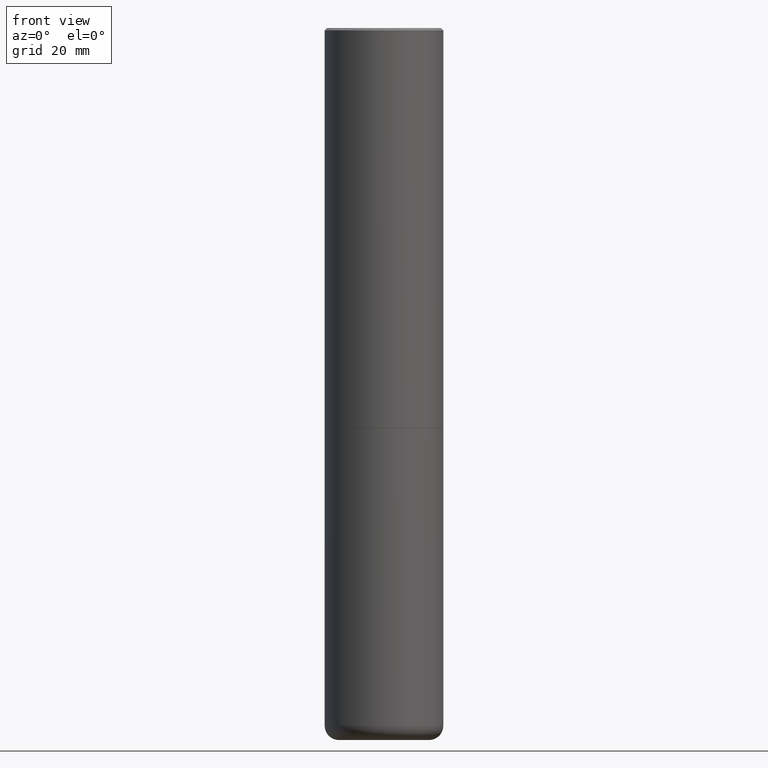
[diagram: clean part render]
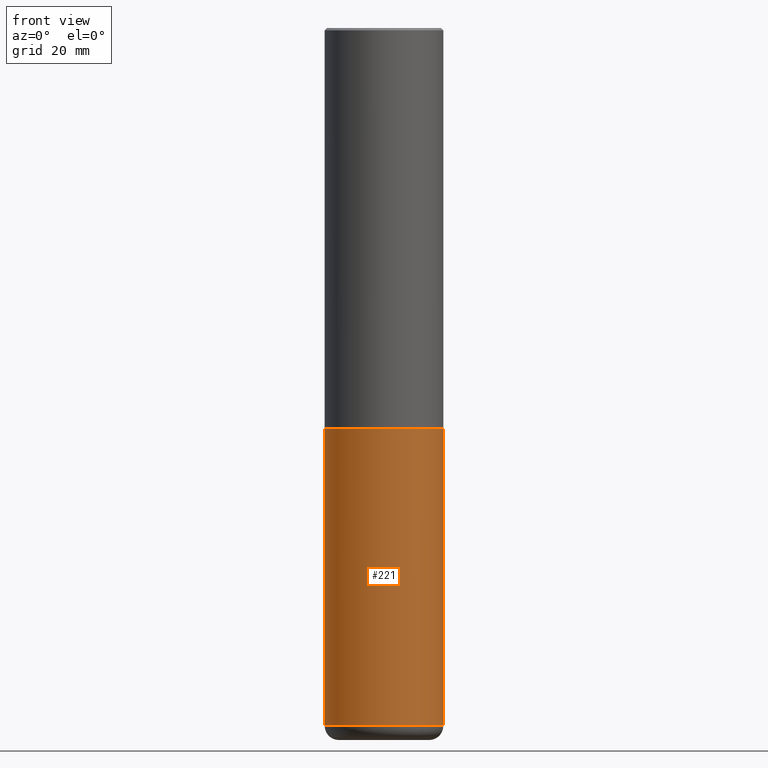
[diagram: same view with one face highlighted and labeled with its STEP entity id]
A machine part, front view. The second image highlights one B-rep face of the part: STEP entity #221.
In plain terms, the highlighted cylindrical surface (partial cylindrical patch) has radius 12.7 mm, axis along (-0, 0, 1).
Its self-contained STEP definition (entity closure, byte-faithful):
#7 = CARTESIAN_POINT ( 'NONE',  ( -0.4999999999999997224, 3.552713678800498957E-15, -2.459467545127451490E-29 ) ) ;
#25 = DIRECTION ( 'NONE',  ( -2.445468806185136877E-29, 3.491481338843145188E-15, 1.000000000000000000 ) ) ;
#45 = EDGE_CURVE ( 'NONE', #189, #117, #385, .T. ) ;
#57 = EDGE_CURVE ( 'NONE', #239, #117, #406, .T. ) ;
#73 = EDGE_CURVE ( 'NONE', #181, #239, #287, .T. ) ;
#76 = CARTESIAN_POINT ( 'NONE',  ( 1.437936775428365776E-28, -2.052992622578700095E-14, -5.880004569232298195 ) ) ;
#94 = CARTESIAN_POINT ( 'NONE',  ( 0.4999999999999994449, -1.527523085743874787E-14, -3.375000000000000888 ) ) ;
#101 = FACE_OUTER_BOUND ( 'NONE', #439, .T. ) ;
#117 = VERTEX_POINT ( 'NONE', #94 ) ;
#132 = CARTESIAN_POINT ( 'NONE',  ( -0.4999999999999999445, -1.260412419339080680E-14, -5.880004569232298195 ) ) ;
#133 = AXIS2_PLACEMENT_3D ( 'NONE', #76, #290, #451 ) ;
#143 = DIRECTION ( 'NONE',  ( -2.445468806185136597E-29, 3.491481338843145583E-15, 1.000000000000000000 ) ) ;
#152 = ORIENTED_EDGE ( 'NONE', *, *, #298, .F. ) ;
#181 = VERTEX_POINT ( 'NONE', #132 ) ;
#189 = VERTEX_POINT ( 'NONE', #269 ) ;
#220 = ORIENTED_EDGE ( 'NONE', *, *, #73, .T. ) ;
#221 = ADVANCED_FACE ( 'NONE', ( #101 ), #424, .T. ) ;
#239 = VERTEX_POINT ( 'NONE', #389 ) ;
#269 = CARTESIAN_POINT ( 'NONE',  ( -0.4999999999999994449, -1.260412419339081154E-14, -3.375000000000000888 ) ) ;
#287 = CIRCLE ( 'NONE', #133, 0.5000000000000000000 ) ;
#290 = DIRECTION ( 'NONE',  ( -2.445468806185136597E-29, 3.491481338843145583E-15, 1.000000000000000000 ) ) ;
#294 = CARTESIAN_POINT ( 'NONE',  ( 8.253457220874838256E-29, -1.178374951859561925E-14, -3.375000000000000888 ) ) ;
#298 = EDGE_CURVE ( 'NONE', #181, #189, #344, .T. ) ;
#313 = AXIS2_PLACEMENT_3D ( 'NONE', #294, #484, #365 ) ;
#322 = ORIENTED_EDGE ( 'NONE', *, *, #57, .T. ) ;
#339 = AXIS2_PLACEMENT_3D ( 'NONE', #342, #143, #429 ) ;
#342 = CARTESIAN_POINT ( 'NONE',  ( 0.000000000000000000, 0.000000000000000000, 0.000000000000000000 ) ) ;
#344 = LINE ( 'NONE', #7, #474 ) ;
#365 = DIRECTION ( 'NONE',  ( 1.000000000000000000, -6.982962677686266711E-15, 0.000000000000000000 ) ) ;
#385 = CIRCLE ( 'NONE', #313, 0.4999999999999994449 ) ;
#387 = DIRECTION ( 'NONE',  ( -2.445468806185136877E-29, 3.491481338843145188E-15, 1.000000000000000000 ) ) ;
#388 = ORIENTED_EDGE ( 'NONE', *, *, #45, .F. ) ;
#389 = CARTESIAN_POINT ( 'NONE',  ( 0.5000000000000000000, -2.402140756463013115E-14, -5.880004569232298195 ) ) ;
#398 = VECTOR ( 'NONE', #25, 39.37007874015748143 ) ;
#406 = LINE ( 'NONE', #479, #398 ) ;
#424 = CYLINDRICAL_SURFACE ( 'NONE', #339, 0.4999999999999997224 ) ;
#429 = DIRECTION ( 'NONE',  ( 1.000000000000000000, -6.982962677686266711E-15, 4.876176775795935793E-29 ) ) ;
#439 = EDGE_LOOP ( 'NONE', ( #152, #220, #322, #388 ) ) ;
#451 = DIRECTION ( 'NONE',  ( 1.000000000000000000, -6.982962677686262766E-15, 0.000000000000000000 ) ) ;
#474 = VECTOR ( 'NONE', #387, 39.37007874015748143 ) ;
#479 = CARTESIAN_POINT ( 'NONE',  ( 0.4999999999999997224, -3.491481338843131383E-15, 2.438088387897966495E-29 ) ) ;
#484 = DIRECTION ( 'NONE',  ( -2.445468806185136597E-29, 3.491481338843145583E-15, 1.000000000000000000 ) ) ;